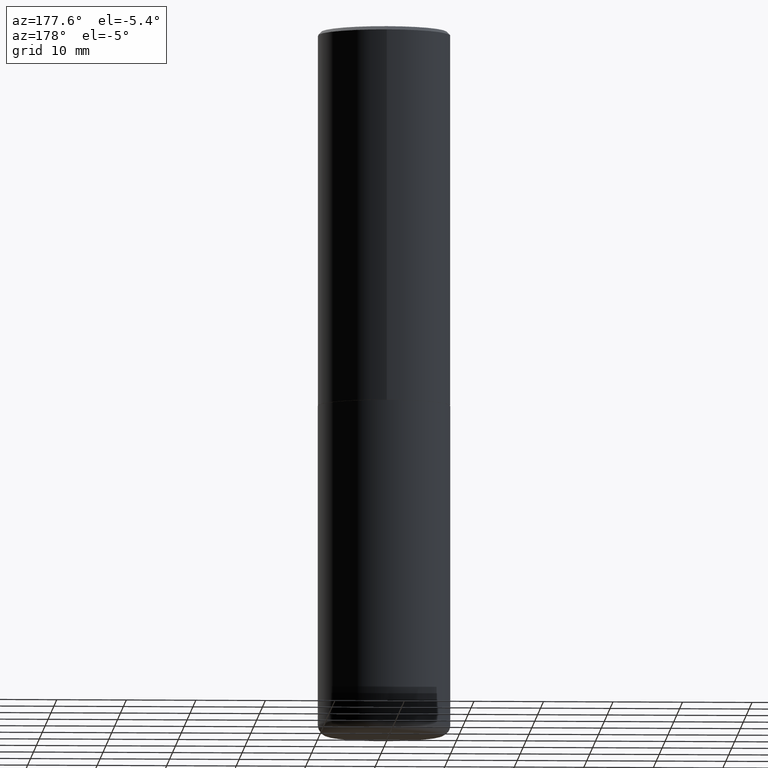
[diagram: clean part render]
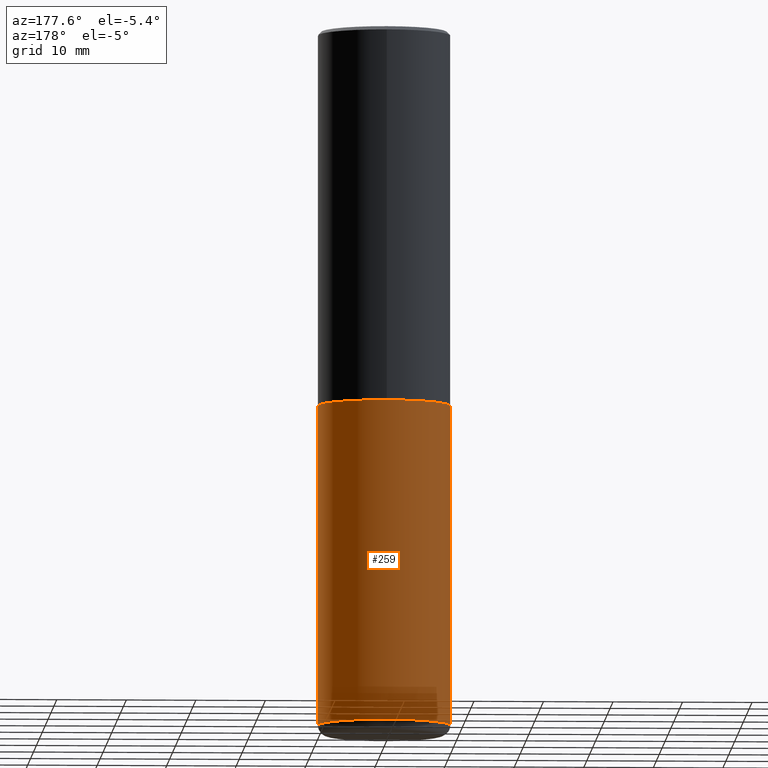
[diagram: same view with one face highlighted and labeled with its STEP entity id]
A machine part, auxiliary view. The second image highlights one B-rep face of the part: STEP entity #259.
In plain terms, the highlighted cylindrical surface (partial cylindrical patch) has radius 9.525 mm, axis along (-0, 0, 1).
Its self-contained STEP definition (entity closure, byte-faithful):
#16 = EDGE_LOOP ( 'NONE', ( #206, #339, #211, #337 ) ) ;
#23 = VERTEX_POINT ( 'NONE', #250 ) ;
#38 = AXIS2_PLACEMENT_3D ( 'NONE', #183, #305, #408 ) ;
#40 = LINE ( 'NONE', #167, #226 ) ;
#47 = DIRECTION ( 'NONE',  ( -2.445468806185136877E-29, 3.491481338843145188E-15, 1.000000000000000000 ) ) ;
#58 = CARTESIAN_POINT ( 'NONE',  ( -0.3750000000000000555, -7.923381900941463910E-15, -2.125000000000000000 ) ) ;
#101 = EDGE_CURVE ( 'NONE', #209, #146, #214, .T. ) ;
#123 = CARTESIAN_POINT ( 'NONE',  ( -0.3750000000000001110, -1.109190121594161832E-14, -3.939999999999999947 ) ) ;
#143 = CARTESIAN_POINT ( 'NONE',  ( 0.000000000000000000, 0.000000000000000000, 0.000000000000000000 ) ) ;
#146 = VERTEX_POINT ( 'NONE', #58 ) ;
#147 = DIRECTION ( 'NONE',  ( 1.000000000000000000, -6.982962677686266711E-15, 0.000000000000000000 ) ) ;
#159 = EDGE_CURVE ( 'NONE', #168, #146, #216, .T. ) ;
#167 = CARTESIAN_POINT ( 'NONE',  ( 0.3750000000000000555, -2.618611004132350016E-15, 1.828566290923476203E-29 ) ) ;
#168 = VERTEX_POINT ( 'NONE', #123 ) ;
#176 = DIRECTION ( 'NONE',  ( 1.000000000000000000, -6.982962677686265922E-15, 4.876176775795935793E-29 ) ) ;
#183 = CARTESIAN_POINT ( 'NONE',  ( 9.635147096369438236E-29, -1.375643647504199401E-14, -3.939999999999999947 ) ) ;
#206 = ORIENTED_EDGE ( 'NONE', *, *, #412, .T. ) ;
#207 = AXIS2_PLACEMENT_3D ( 'NONE', #143, #371, #176 ) ;
#209 = VERTEX_POINT ( 'NONE', #293 ) ;
#211 = ORIENTED_EDGE ( 'NONE', *, *, #101, .F. ) ;
#214 = CIRCLE ( 'NONE', #292, 0.3750000000000000555 ) ;
#216 = LINE ( 'NONE', #258, #233 ) ;
#220 = CARTESIAN_POINT ( 'NONE',  ( 5.196621213143415268E-29, -7.419397845041683624E-15, -2.125000000000000000 ) ) ;
#226 = VECTOR ( 'NONE', #47, 39.37007874015748143 ) ;
#233 = VECTOR ( 'NONE', #361, 39.37007874015748143 ) ;
#236 = EDGE_CURVE ( 'NONE', #23, #209, #40, .T. ) ;
#250 = CARTESIAN_POINT ( 'NONE',  ( 0.3750000000000001110, -1.637504747917434403E-14, -3.939999999999999947 ) ) ;
#258 = CARTESIAN_POINT ( 'NONE',  ( -0.3750000000000000555, 2.664535259100376091E-15, -1.844600658845589598E-29 ) ) ;
#259 = ADVANCED_FACE ( 'NONE', ( #402 ), #262, .T. ) ;
#262 = CYLINDRICAL_SURFACE ( 'NONE', #207, 0.3750000000000000555 ) ;
#292 = AXIS2_PLACEMENT_3D ( 'NONE', #220, #316, #147 ) ;
#293 = CARTESIAN_POINT ( 'NONE',  ( 0.3750000000000000555, -1.003800884917403364E-14, -2.125000000000000000 ) ) ;
#305 = DIRECTION ( 'NONE',  ( -2.445468806185136597E-29, 3.491481338843145583E-15, 1.000000000000000000 ) ) ;
#316 = DIRECTION ( 'NONE',  ( -2.445468806185136597E-29, 3.491481338843145583E-15, 1.000000000000000000 ) ) ;
#330 = CIRCLE ( 'NONE', #38, 0.3750000000000000555 ) ;
#337 = ORIENTED_EDGE ( 'NONE', *, *, #236, .F. ) ;
#339 = ORIENTED_EDGE ( 'NONE', *, *, #159, .T. ) ;
#361 = DIRECTION ( 'NONE',  ( -2.445468806185136877E-29, 3.491481338843145188E-15, 1.000000000000000000 ) ) ;
#371 = DIRECTION ( 'NONE',  ( -2.445468806185136597E-29, 3.491481338843145583E-15, 1.000000000000000000 ) ) ;
#402 = FACE_OUTER_BOUND ( 'NONE', #16, .T. ) ;
#408 = DIRECTION ( 'NONE',  ( 1.000000000000000000, -6.982962677686266711E-15, 0.000000000000000000 ) ) ;
#412 = EDGE_CURVE ( 'NONE', #23, #168, #330, .T. ) ;